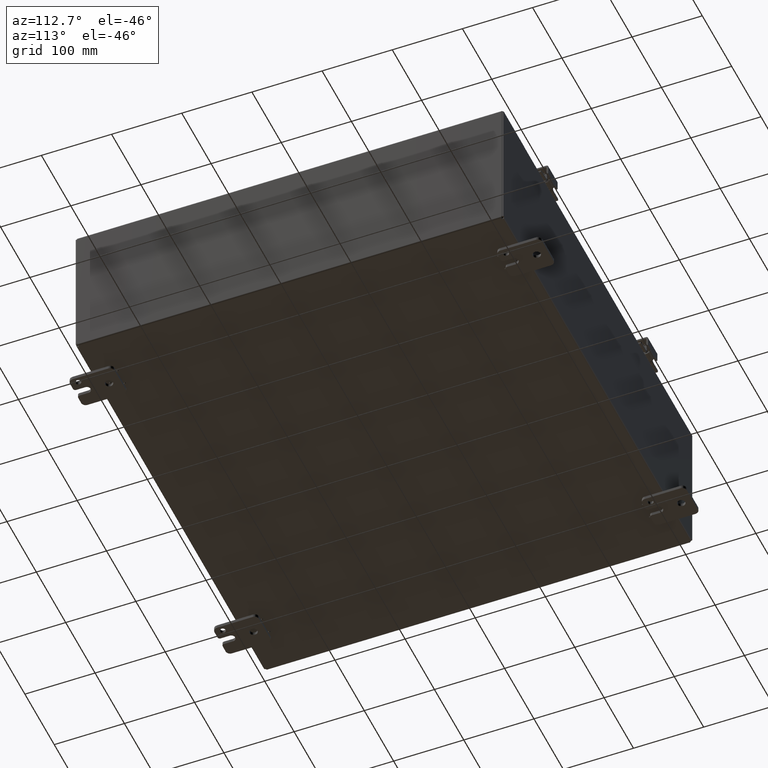
[diagram: clean part render]
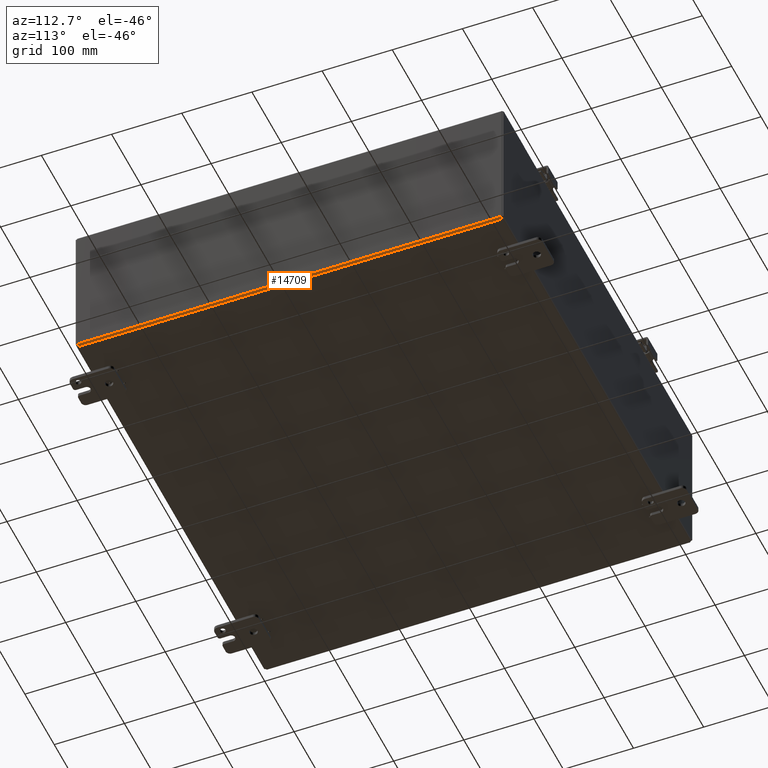
[diagram: same view with one face highlighted and labeled with its STEP entity id]
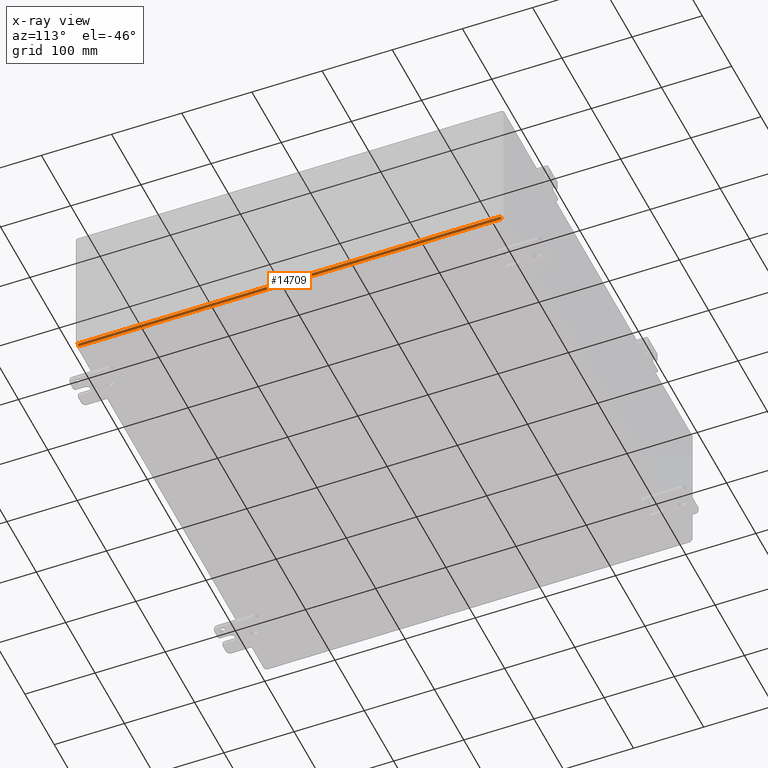
[diagram: x-ray of the same camera — body ghosted, the highlighted face saturated]
A machine part, auxiliary view. The second image highlights one B-rep face of the part: STEP entity #14709.
The next image is the same camera in x-ray: the body ghosted, the highlighted face saturated — about 0% of this face is hidden behind the body in this view.
In plain terms, the highlighted cylindrical surface (edge-blend (fillet) strip) has radius 2.6734 mm, axis along (0, -1, 0).
Its self-contained STEP definition (entity closure, byte-faithful):
#303=B_SPLINE_CURVE_WITH_KNOTS('',3,(#22190,#22191,#22192,#22193,#22194,
#22195,#22196,#22197,#22198,#22199),.UNSPECIFIED.,.F.,.F.,(4,3,3,4),(-2.23484870817958,
-1.66566095270696,-1.28620244905854,-0.906743945410127),.UNSPECIFIED.);
#304=B_SPLINE_CURVE_WITH_KNOTS('',3,(#22235,#22236,#22237,#22238,#22239,
#22240,#22241,#22242,#22243,#22244),.UNSPECIFIED.,.F.,.F.,(4,3,3,4),(0.906743945410313,
1.28620244905867,1.66566095270703,2.23484870817957),.UNSPECIFIED.);
#1253=FACE_OUTER_BOUND('',#2119,.T.);
#2119=EDGE_LOOP('',(#10671,#10672,#10673,#10674));
#3160=LINE('',#22053,#4549);
#3205=LINE('',#22246,#4594);
#4549=VECTOR('',#17861,23.7655336786487);
#4594=VECTOR('',#17970,23.7655336786487);
#6511=VERTEX_POINT('',#22050);
#6512=VERTEX_POINT('',#22052);
#6545=VERTEX_POINT('',#22189);
#6548=VERTEX_POINT('',#22233);
#8039=EDGE_CURVE('',#6511,#6512,#3160,.T.);
#8091=EDGE_CURVE('',#6545,#6512,#303,.T.);
#8098=EDGE_CURVE('',#6511,#6548,#304,.T.);
#8099=EDGE_CURVE('',#6545,#6548,#3205,.T.);
#10671=ORIENTED_EDGE('',*,*,#8039,.F.);
#10672=ORIENTED_EDGE('',*,*,#8098,.T.);
#10673=ORIENTED_EDGE('',*,*,#8099,.F.);
#10674=ORIENTED_EDGE('',*,*,#8091,.T.);
#13702=CYLINDRICAL_SURFACE('',#15719,0.105250000000012);
#14709=ADVANCED_FACE('',(#1253),#13702,.T.);
#15719=AXIS2_PLACEMENT_3D('',#22245,#17968,#17969);
#17861=DIRECTION('',(-8.1671466933811E-16,1.,3.14576443631111E-30));
#17968=DIRECTION('center_axis',(2.3311769545935E-16,-1.,0.));
#17969=DIRECTION('ref_axis',(1.,0.,-6.22939209956624E-14));
#17970=DIRECTION('',(0.,-1.,0.));
#22050=CARTESIAN_POINT('',(25.38,0.117233160675632,0.10524999999999));
#22052=CARTESIAN_POINT('',(25.38,23.8827668393244,0.105249999999995));
#22053=CARTESIAN_POINT('',(25.38,12.,0.10524999999999));
#22189=CARTESIAN_POINT('',(25.27475,23.8827668393244,0.));
#22190=CARTESIAN_POINT('Ctrl Pts',(25.27475,23.8827668393244,-6.22861342555452E-15));
#22191=CARTESIAN_POINT('Ctrl Pts',(25.2947899229065,23.8745815549089,-6.23083387160377E-15));
#22192=CARTESIAN_POINT('Ctrl Pts',(25.3198963171017,23.8694804829159,0.00698351250409559));
#22193=CARTESIAN_POINT('Ctrl Pts',(25.3397272245209,23.8682151155244,0.0224754497309994));
#22194=CARTESIAN_POINT('Ctrl Pts',(25.3529478294671,23.8673715372633,0.0328034078822686));
#22195=CARTESIAN_POINT('Ctrl Pts',(25.3638237736239,23.8682327166029,0.0469128881325609));
#22196=CARTESIAN_POINT('Ctrl Pts',(25.3705868162571,23.8707173280489,0.0616845490109149));
#22197=CARTESIAN_POINT('Ctrl Pts',(25.3773498588903,23.873201939495,0.0764562098892689));
#22198=CARTESIAN_POINT('Ctrl Pts',(25.38,23.8773099830474,0.0918900513956847));
#22199=CARTESIAN_POINT('Ctrl Pts',(25.38,23.8827668393244,0.10525));
#22233=CARTESIAN_POINT('',(25.27475,0.117233160675632,0.));
#22235=CARTESIAN_POINT('Ctrl Pts',(25.38,0.117233160675632,0.105249999999988));
#22236=CARTESIAN_POINT('Ctrl Pts',(25.38,0.122690016952622,0.0918900513956727));
#22237=CARTESIAN_POINT('Ctrl Pts',(25.3773496174083,0.126798147973721,0.0764555801331142));
#22238=CARTESIAN_POINT('Ctrl Pts',(25.3705863432726,0.12928282150253,0.061683360098834));
#22239=CARTESIAN_POINT('Ctrl Pts',(25.363823069137,0.131767495031338,0.0469111400645538));
#22240=CARTESIAN_POINT('Ctrl Pts',(25.3529469034574,0.132628711067856,0.032801171258552));
#22241=CARTESIAN_POINT('Ctrl Pts',(25.3397263669246,0.131785106284724,0.0224733950870224));
#22242=CARTESIAN_POINT('Ctrl Pts',(25.3198955621254,0.130519699110026,0.00698173082972804));
#22243=CARTESIAN_POINT('Ctrl Pts',(25.2947899229065,0.125418445091114,-3.88468784699058E-15));
#22244=CARTESIAN_POINT('Ctrl Pts',(25.27475,0.117233160675628,-6.16304907370658E-15));
#22245=CARTESIAN_POINT('Origin',(25.27475,0.117233160675632,0.105249999999995));
#22246=CARTESIAN_POINT('',(25.27475,17.947375,0.));